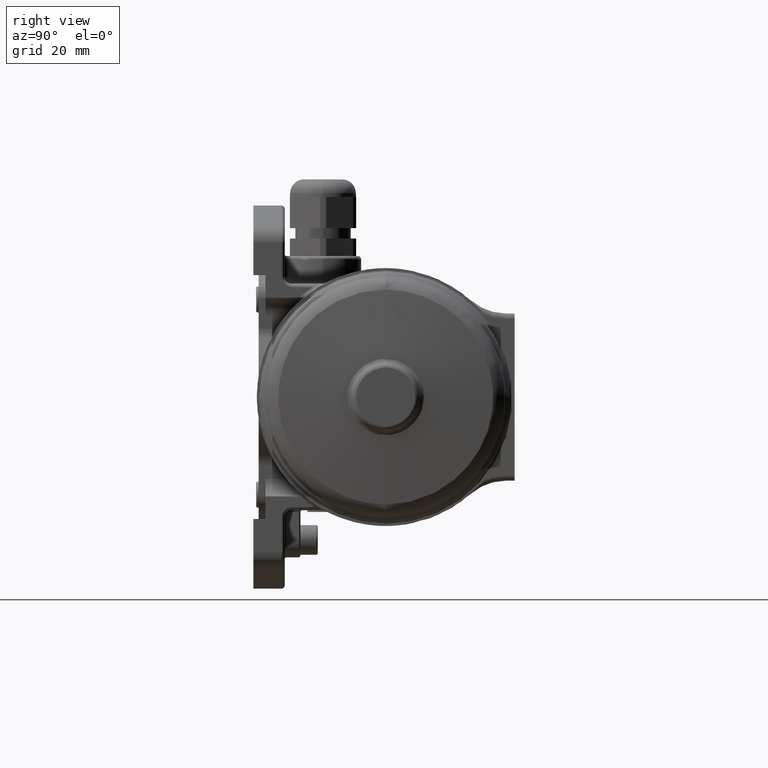
[diagram: clean part render]
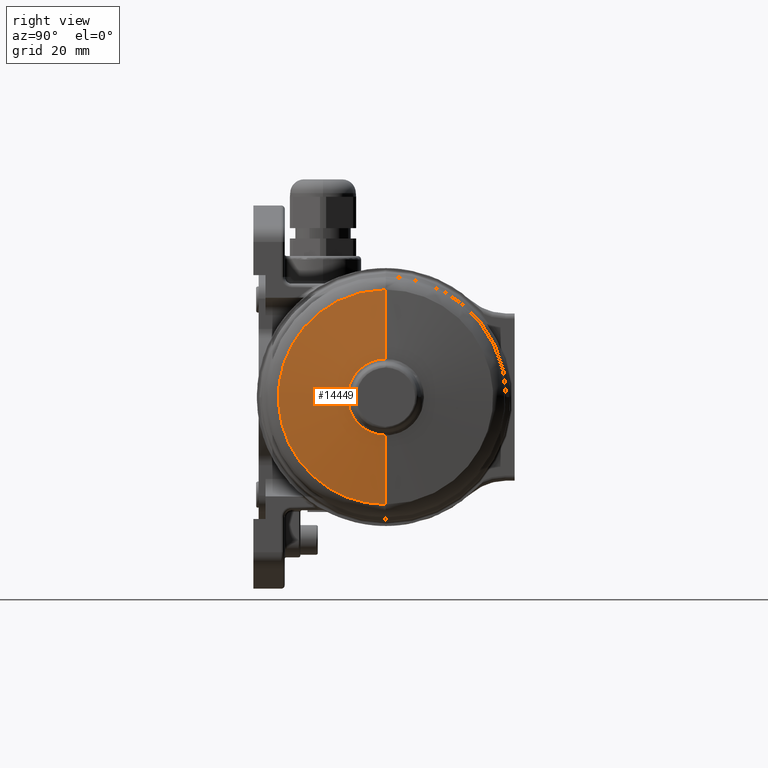
[diagram: same view with one face highlighted and labeled with its STEP entity id]
A machine part, right view. The second image highlights one B-rep face of the part: STEP entity #14449.
In plain terms, the highlighted conical surface has half-angle 85 deg.
Its self-contained STEP definition (entity closure, byte-faithful):
#12461 = CARTESIAN_POINT ( 'NONE',  ( 74.21629720925889700, -6.660490971707579500E-015, 30.83119186199634900 ) ) ;
#12581 = CARTESIAN_POINT ( 'NONE',  ( 74.21629720915271400, -0.01621276101683460200, -30.83118760219940000 ) ) ;
#12753 = DIRECTION ( 'NONE',  ( -4.501216777079556700E-016, -2.775557561562890100E-017, 1.000000000000000000 ) ) ;
#12754 = DIRECTION ( 'NONE',  ( 1.000000000000000000, -1.687976295381489700E-016, 2.813243510682735200E-016 ) ) ;
#12755 = AXIS2_PLACEMENT_3D ( 'NONE', #12767, #12754, #12753 ) ;
#12761 = CIRCLE ( 'NONE', #12755, 30.83119186456630000 ) ;
#12767 = CARTESIAN_POINT ( 'NONE',  ( 74.21629720918950600, -3.469504667829620000E-015, -4.547089386396389500E-019 ) ) ;
#12771 = CARTESIAN_POINT ( 'NONE',  ( 74.21629720952881800, -18.81690367655456300, -24.50626597398821700 ) ) ;
#12772 = CARTESIAN_POINT ( 'NONE',  ( 74.21629720952881800, -20.38347435204356000, -23.21953723268763200 ) ) ;
#12773 = CARTESIAN_POINT ( 'NONE',  ( 74.21629720952881800, -23.23560816067081800, -20.36515281956786400 ) ) ;
#12774 = CARTESIAN_POINT ( 'NONE',  ( 74.21629720952881800, -24.52110081634410600, -18.79756768082703600 ) ) ;
#12775 = CARTESIAN_POINT ( 'NONE',  ( 74.21629720952881800, -26.76167919506999100, -15.44167939768025900 ) ) ;
#12776 = CARTESIAN_POINT ( 'NONE',  ( 74.21629720952881800, -27.71670955245786100, -13.65345917873108000 ) ) ;
#12777 = CARTESIAN_POINT ( 'NONE',  ( 74.21629720952881800, -29.25965706078888900, -9.924988899017051800 ) ) ;
#12778 = CARTESIAN_POINT ( 'NONE',  ( 74.21629720952881800, -29.84753608482909100, -7.984830970371906000 ) ) ;
#12779 = CARTESIAN_POINT ( 'NONE',  ( 74.21629720952881800, -30.63357789993428400, -4.027013907257209100 ) ) ;
#12780 = CARTESIAN_POINT ( 'NONE',  ( 74.21629720952881800, -30.83172126756468500, -2.009452572165967100 ) ) ;
#12781 = CARTESIAN_POINT ( 'NONE',  ( 74.21629720952881800, -30.83066032241711300, 2.025665333741010900 ) ) ;
#12782 = CARTESIAN_POINT ( 'NONE',  ( 74.21629720952881800, -30.63145603585555300, 4.043122195041039600 ) ) ;
#12783 = CARTESIAN_POINT ( 'NONE',  ( 74.21629720952881800, -29.84333308837816600, 8.000525366293027600 ) ) ;
#12784 = CARTESIAN_POINT ( 'NONE',  ( 74.21629720952881800, -29.25443390232261400, 9.940373887094116500 ) ) ;
#12785 = CARTESIAN_POINT ( 'NONE',  ( 74.21629720952881800, -27.70952596960673000, 13.66803228340771500 ) ) ;
#12786 = CARTESIAN_POINT ( 'NONE',  ( 74.21629720952881800, -26.75355539829229900, 15.45575004686248400 ) ) ;
#12787 = CARTESIAN_POINT ( 'NONE',  ( 74.21629720952881800, -24.51121261604084400, 18.81045964488442100 ) ) ;
#12788 = CARTESIAN_POINT ( 'NONE',  ( 74.21629720952881800, -23.22489581436768100, 20.37736858312062400 ) ) ;
#12789 = CARTESIAN_POINT ( 'NONE',  ( 74.21629720952881800, -20.37126140548784600, 23.23025279048565000 ) ) ;
#12790 = CARTESIAN_POINT ( 'NONE',  ( 74.21629720952881800, -18.80401431282658800, 24.51615756360686400 ) ) ;
#12791 = CARTESIAN_POINT ( 'NONE',  ( 74.21629720952881800, -15.44871525626448200, 26.75761822157282000 ) ) ;
#12792 = CARTESIAN_POINT ( 'NONE',  ( 74.21629720952881800, -13.66074620326039500, 27.71311871895134300 ) ) ;
#12793 = CARTESIAN_POINT ( 'NONE',  ( 74.21629720952881800, -9.932681736384005000, 29.25704649284148900 ) ) ;
#12794 = CARTESIAN_POINT ( 'NONE',  ( 74.21629720952879000, -7.992678444603615900, 29.84543561822733800 ) ) ;
#12795 = CARTESIAN_POINT ( 'NONE',  ( 74.21629720952881800, -4.035068190623325000, 30.63251802672454700 ) ) ;
#12796 = CARTESIAN_POINT ( 'NONE',  ( 74.21629720952880400, -2.017559022691387300, 30.83119186068778800 ) ) ;
#12797 = CARTESIAN_POINT ( 'NONE',  ( 74.21629720925889700, -6.660490971707579500E-015, 30.83119186199634900 ) ) ;
#12799 = B_SPLINE_CURVE_WITH_KNOTS ( 'NONE', 3,
 ( #12797, #12796, #12795, #12794, #12793, #12792, #12791, #12790, #12789, #12788, #12787, #12786, #12785, #12784, #12783, #12782, #12781, #12780, #12779, #12778, #12777, #12776, #12775, #12774, #12773, #12772, #12771, #12833, #12832, #12831, #12830, #12829, #12828, #12827 ),
 .UNSPECIFIED., .F., .F.,
 ( 4, 2, 2, 2, 2, 2, 2, 2, 2, 2, 2, 2, 2, 2, 2, 2, 4 ),
 ( 0.0000000000000000000, 0.06250000000000000000, 0.1250000000000000000, 0.1875000000000000000, 0.2500000000000000000, 0.3125000000000000000, 0.3750000000000000000, 0.4375000000000000000, 0.5000000000000000000, 0.5625000000000000000, 0.6250000000000000000, 0.6875000000000000000, 0.7500000000000000000, 0.8125000000000000000, 0.8750000000000000000, 0.9375000000000000000, 1.000000000000000000 ),
 .UNSPECIFIED. ) ;
#12827 = CARTESIAN_POINT ( 'NONE',  ( 74.21629720915271400, -0.01621276101683460200, -30.83118760219940000 ) ) ;
#12828 = CARTESIAN_POINT ( 'NONE',  ( 74.21629720952883200, -2.033771504753926900, -30.83012665278941000 ) ) ;
#12829 = CARTESIAN_POINT ( 'NONE',  ( 74.21629720952883200, -4.051175919953068100, -30.63039192740075800 ) ) ;
#12830 = CARTESIAN_POINT ( 'NONE',  ( 74.21629720952883200, -8.008371734897172800, -29.84122849542700700 ) ) ;
#12831 = CARTESIAN_POINT ( 'NONE',  ( 74.21629720952881800, -9.948065350615122400, -29.25181928941301700 ) ) ;
#12832 = CARTESIAN_POINT ( 'NONE',  ( 74.21629720952881800, -13.67531741866886600, -27.70593130467259600 ) ) ;
#12833 = CARTESIAN_POINT ( 'NONE',  ( 74.21629720952881800, -15.46278376898749400, -26.74949072550955600 ) ) ;
#14172 = ORIENTED_EDGE ( 'NONE', *, *, #14640, .T. ) ;
#14228 = ORIENTED_EDGE ( 'NONE', *, *, #14675, .F. ) ;
#14249 = VERTEX_POINT ( 'NONE', #12461 ) ;
#14299 = ORIENTED_EDGE ( 'NONE', *, *, #14403, .T. ) ;
#14309 = VERTEX_POINT ( 'NONE', #12581 ) ;
#14339 = ORIENTED_EDGE ( 'NONE', *, *, #14342, .T. ) ;
#14340 = EDGE_CURVE ( 'NONE', #14309, #14404, #12761, .T. ) ;
#14342 = EDGE_CURVE ( 'NONE', #14249, #14309, #12799, .T. ) ;
#14385 = ORIENTED_EDGE ( 'NONE', *, *, #14340, .T. ) ;
#14403 = EDGE_CURVE ( 'NONE', #14404, #14689, #17116, .T. ) ;
#14404 = VERTEX_POINT ( 'NONE', #17050 ) ;
#14411 = ORIENTED_EDGE ( 'NONE', *, *, #14413, .T. ) ;
#14413 = EDGE_CURVE ( 'NONE', #14685, #14249, #17118, .T. ) ;
#14421 = EDGE_LOOP ( 'NONE', ( #14172, #14411, #14339, #14385, #14299, #14228 ) ) ;
#14449 = ADVANCED_FACE ( 'NONE', ( #17978 ), #17987, .T. ) ;
#14634 = VERTEX_POINT ( 'NONE', #20814 ) ;
#14640 = EDGE_CURVE ( 'NONE', #14634, #14685, #20921, .T. ) ;
#14675 = EDGE_CURVE ( 'NONE', #14634, #14689, #21392, .T. ) ;
#14685 = VERTEX_POINT ( 'NONE', #21358 ) ;
#14689 = VERTEX_POINT ( 'NONE', #21509 ) ;
#17050 = CARTESIAN_POINT ( 'NONE',  ( 74.21629720906780400, -5.517388553666020600E-012, -30.83119186047255100 ) ) ;
#17078 = DIRECTION ( 'NONE',  ( -0.08715574274728669900, -8.034438351887510000E-018, 0.9961946980917780700 ) ) ;
#17080 = CARTESIAN_POINT ( 'NONE',  ( 74.21629720906530300, -4.325242144957990500E-015, 30.83119186598505100 ) ) ;
#17090 = DIRECTION ( 'NONE',  ( 0.08715574274728631100, 1.874080500130550200E-013, 0.9961946980917781900 ) ) ;
#17112 = VECTOR ( 'NONE', #17090, 999.9999999999998900 ) ;
#17114 = CARTESIAN_POINT ( 'NONE',  ( 74.21629720906530300, -5.804161204873560000E-012, -30.83119186598505100 ) ) ;
#17116 = LINE ( 'NONE', #17114, #17112 ) ;
#17118 = LINE ( 'NONE', #17080, #17193 ) ;
#17193 = VECTOR ( 'NONE', #17078, 1000.000000000000000 ) ;
#17958 = DIRECTION ( 'NONE',  ( -4.501216777079556700E-016, -2.775557561562890100E-017, 1.000000000000000000 ) ) ;
#17960 = DIRECTION ( 'NONE',  ( -1.000000000000000000, 1.687976295381489700E-016, -2.813243510682735200E-016 ) ) ;
#17962 = AXIS2_PLACEMENT_3D ( 'NONE', #17992, #17960, #17958 ) ;
#17978 = FACE_OUTER_BOUND ( 'NONE', #14421, .T. ) ;
#17987 = CONICAL_SURFACE ( 'NONE', #17962, 30.83119186456630000, 1.483529864195553400 ) ;
#17992 = CARTESIAN_POINT ( 'NONE',  ( 74.21629720918950600, -3.469504667829620000E-015, -4.547089386394679200E-019 ) ) ;
#20814 = CARTESIAN_POINT ( 'NONE',  ( 75.95462959212369500, -0.005764411179637890200, -10.96196029233500000 ) ) ;
#20921 = B_SPLINE_CURVE_WITH_KNOTS ( 'NONE', 3,
 ( #20979, #20978, #20977, #20976, #20975, #20974, #20973, #20972, #20971, #20970, #20969, #20968, #20967, #20966, #20965, #20964, #20963, #20962 ),
 .UNSPECIFIED., .F., .F.,
 ( 4, 2, 2, 2, 2, 2, 2, 2, 4 ),
 ( 0.0000000000000000000, 0.1250000000000000300, 0.2500000000000000600, 0.3750000000000000000, 0.5000000000000000000, 0.6249999999999998900, 0.7499999999999998900, 0.8750000000000000000, 1.000000000000000000 ),
 .UNSPECIFIED. ) ;
#20962 = CARTESIAN_POINT ( 'NONE',  ( 75.95462959215629400, -2.948722446132080000E-015, 10.96196180515622000 ) ) ;
#20963 = CARTESIAN_POINT ( 'NONE',  ( 75.95462959209844200, -1.434677261428224400, 10.96196180824799700 ) ) ;
#20964 = CARTESIAN_POINT ( 'NONE',  ( 75.95462959209845600, -2.868790415079919900, 10.67674796388359200 ) ) ;
#20965 = CARTESIAN_POINT ( 'NONE',  ( 75.95462959209845600, -5.519800501828718200, 9.578867780168916800 ) ) ;
#20966 = CARTESIAN_POINT ( 'NONE',  ( 75.95462959209845600, -6.735655071290512600, 8.766633121703296900 ) ) ;
#20967 = CARTESIAN_POINT ( 'NONE',  ( 75.95462959209844200, -8.764861826980638400, 6.737959830978841300 ) ) ;
#20968 = CARTESIAN_POINT ( 'NONE',  ( 75.95462959209845600, -9.577416139469745500, 5.522318862703548900 ) ) ;
#20969 = CARTESIAN_POINT ( 'NONE',  ( 75.95462959209844200, -10.67599330977269300, 2.871597530928666800 ) ) ;
#20970 = CARTESIAN_POINT ( 'NONE',  ( 75.95462959209845600, -10.96158421265034600, 1.437559417527398700 ) ) ;
#20971 = CARTESIAN_POINT ( 'NONE',  ( 75.95462959209844200, -10.96233864603331800, -1.431795006148334900 ) ) ;
#20972 = CARTESIAN_POINT ( 'NONE',  ( 75.95462959209844200, -10.67750187989928900, -2.865983100908656000 ) ) ;
#20973 = CARTESIAN_POINT ( 'NONE',  ( 75.95462959209844200, -9.580318758670529200, -5.517281759364157900 ) ) ;
#20974 = CARTESIAN_POINT ( 'NONE',  ( 75.95462959209842800, -8.768403810379011200, -6.733349845959114800 ) ) ;
#20975 = CARTESIAN_POINT ( 'NONE',  ( 75.95462959209842800, -6.740264124864607400, -8.763089926333634600 ) ) ;
#20976 = CARTESIAN_POINT ( 'NONE',  ( 75.95462959209842800, -5.524836841814392100, -9.575963836673427200 ) ) ;
#20977 = CARTESIAN_POINT ( 'NONE',  ( 75.95462959209845600, -2.874404448260664800, -10.67523791761880000 ) ) ;
#20978 = CARTESIAN_POINT ( 'NONE',  ( 75.95462959209845600, -1.440441474246442400, -10.96120585926647100 ) ) ;
#20979 = CARTESIAN_POINT ( 'NONE',  ( 75.95462959212369500, -0.005764411179637890200, -10.96196029233500000 ) ) ;
#21358 = CARTESIAN_POINT ( 'NONE',  ( 75.95462959215629400, -2.948722446132080000E-015, 10.96196180515622000 ) ) ;
#21359 = CARTESIAN_POINT ( 'NONE',  ( 75.95462959231009800, -3.762931053449789300E-015, 4.885805206837509600E-016 ) ) ;
#21392 = CIRCLE ( 'NONE', #21396, 10.96196180582772000 ) ;
#21396 = AXIS2_PLACEMENT_3D ( 'NONE', #21359, #21434, #21433 ) ;
#21433 = DIRECTION ( 'NONE',  ( 0.0000000000000000000, -2.775557561562886700E-017, 1.000000000000000000 ) ) ;
#21434 = DIRECTION ( 'NONE',  ( 1.000000000000000000, -1.687976295381489700E-016, 2.813243510682735200E-016 ) ) ;
#21509 = CARTESIAN_POINT ( 'NONE',  ( 75.95462959218720300, -1.861771699815255000E-012, -10.96196180528344000 ) ) ;